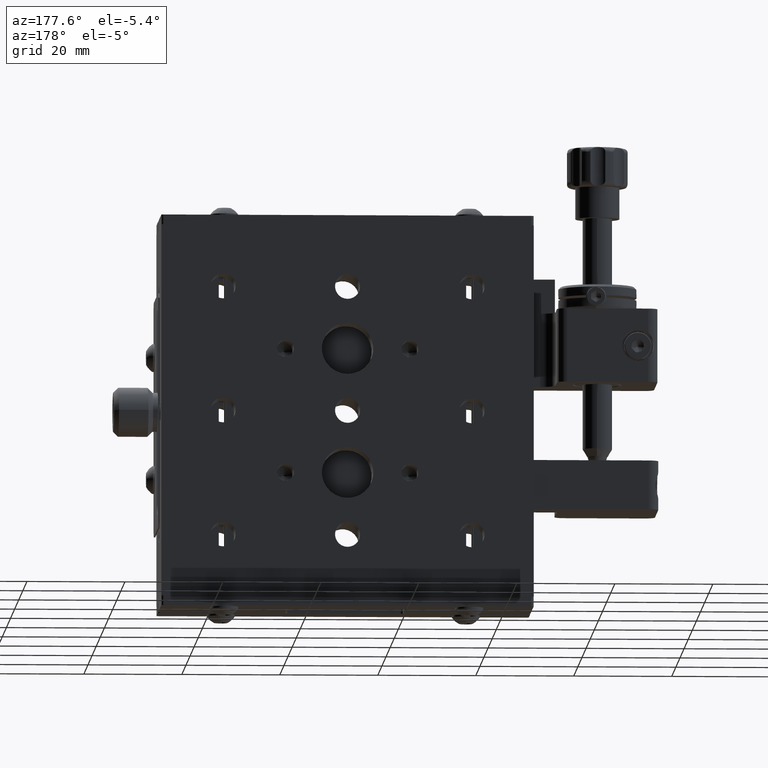
[diagram: clean part render]
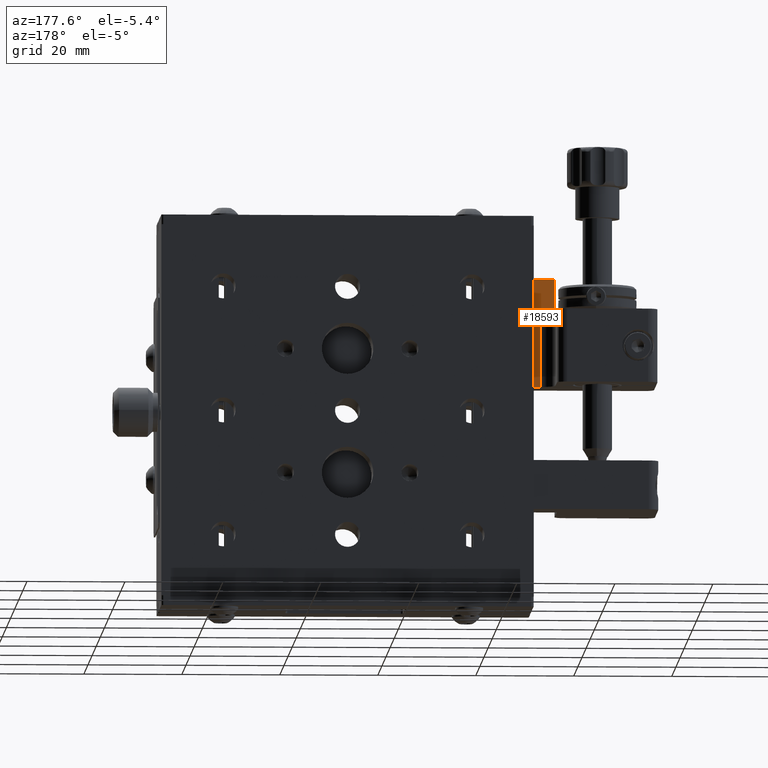
[diagram: same view with one face highlighted and labeled with its STEP entity id]
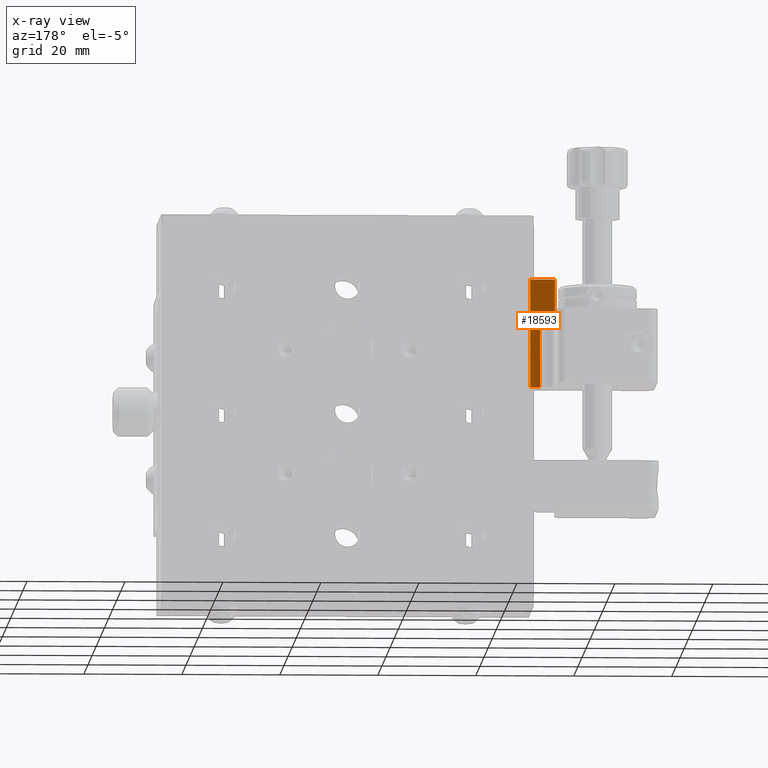
[diagram: x-ray of the same camera — body ghosted, the highlighted face saturated]
A machine part, auxiliary view. The second image highlights one B-rep face of the part: STEP entity #18593.
The next image is the same camera in x-ray: the body ghosted, the highlighted face saturated — about 25% of this face is hidden behind the body in this view.
In plain terms, the highlighted planar face has unit normal (-0, 1, 0).
Its self-contained STEP definition (entity closure, byte-faithful):
#322 = LINE ( 'NONE', #15722, #55772 ) ;
#1371 = DIRECTION ( 'NONE',  ( 1.000000000000000000, 1.222872749216509300E-015, -3.538501282865057600E-016 ) ) ;
#2774 = CARTESIAN_POINT ( 'NONE',  ( -29.25019253063125600, -7.154134368212807800, 117.6000000000000400 ) ) ;
#6920 = DIRECTION ( 'NONE',  ( 1.000000000000000000, 1.222872749216509300E-015, -3.538501282865057600E-016 ) ) ;
#8578 = VECTOR ( 'NONE', #11741, 1000.000000000000000 ) ;
#8798 = VECTOR ( 'NONE', #1371, 1000.000000000000000 ) ;
#9039 = VECTOR ( 'NONE', #10823, 1000.000000000000000 ) ;
#9707 = CARTESIAN_POINT ( 'NONE',  ( -27.25019253063124200, -7.154134368212806000, 139.6000000000002200 ) ) ;
#10598 = CARTESIAN_POINT ( 'NONE',  ( -29.25019253063124900, -7.154134368212804200, 132.6000000000002200 ) ) ;
#10823 = DIRECTION ( 'NONE',  ( -3.538501282865115300E-016, 5.551115123126275700E-017, -1.000000000000000000 ) ) ;
#11741 = DIRECTION ( 'NONE',  ( -3.538501282865115300E-016, 5.551115123126275700E-017, -1.000000000000000000 ) ) ;
#13005 = EDGE_CURVE ( 'NONE', #23465, #21234, #39572, .T. ) ;
#14015 = EDGE_LOOP ( 'NONE', ( #56113, #36491, #51378, #19743, #37570, #18525 ) ) ;
#14135 = VERTEX_POINT ( 'NONE', #35751 ) ;
#15652 = CARTESIAN_POINT ( 'NONE',  ( -32.25019253063124600, -7.154134368212813100, 139.6000000000002200 ) ) ;
#15722 = CARTESIAN_POINT ( 'NONE',  ( -27.25019253063125300, -7.154134368212805100, 117.6000000000000400 ) ) ;
#18525 = ORIENTED_EDGE ( 'NONE', *, *, #41069, .T. ) ;
#18593 = ADVANCED_FACE ( 'NONE', ( #28513 ), #33609, .T. ) ;
#19219 = VERTEX_POINT ( 'NONE', #43359 ) ;
#19743 = ORIENTED_EDGE ( 'NONE', *, *, #54379, .F. ) ;
#20681 = DIRECTION ( 'NONE',  ( -1.222872749216509100E-015, 1.000000000000000000, 5.551115123125283500E-017 ) ) ;
#20925 = LINE ( 'NONE', #45832, #9039 ) ;
#21234 = VERTEX_POINT ( 'NONE', #32613 ) ;
#21852 = LINE ( 'NONE', #15652, #8578 ) ;
#22866 = VECTOR ( 'NONE', #41955, 1000.000000000000000 ) ;
#23465 = VERTEX_POINT ( 'NONE', #57357 ) ;
#27018 = CARTESIAN_POINT ( 'NONE',  ( -27.25019253063124600, -7.154134368212801600, 132.6000000000002200 ) ) ;
#27867 = VECTOR ( 'NONE', #36256, 1000.000000000000000 ) ;
#28490 = AXIS2_PLACEMENT_3D ( 'NONE', #47089, #20681, #42283 ) ;
#28513 = FACE_OUTER_BOUND ( 'NONE', #14015, .T. ) ;
#32613 = CARTESIAN_POINT ( 'NONE',  ( -32.25019253063124600, -7.154134368212808700, 132.6000000000002200 ) ) ;
#33609 = PLANE ( 'NONE',  #28490 ) ;
#34614 = LINE ( 'NONE', #10598, #22866 ) ;
#35751 = CARTESIAN_POINT ( 'NONE',  ( -27.25019253063125300, -7.154134368212805100, 117.6000000000000400 ) ) ;
#36256 = DIRECTION ( 'NONE',  ( -1.000000000000000000, -1.222872749216509100E-015, 4.807811143335895300E-016 ) ) ;
#36491 = ORIENTED_EDGE ( 'NONE', *, *, #37005, .T. ) ;
#37005 = EDGE_CURVE ( 'NONE', #43664, #23465, #34614, .T. ) ;
#37570 = ORIENTED_EDGE ( 'NONE', *, *, #48488, .T. ) ;
#39572 = LINE ( 'NONE', #27018, #27867 ) ;
#41069 = EDGE_CURVE ( 'NONE', #42739, #14135, #20925, .T. ) ;
#41955 = DIRECTION ( 'NONE',  ( 3.538501282865115300E-016, -5.551115123126275700E-017, 1.000000000000000000 ) ) ;
#42283 = DIRECTION ( 'NONE',  ( 1.000000000000000000, 1.222872749216509100E-015, -3.538501282865057600E-016 ) ) ;
#42739 = VERTEX_POINT ( 'NONE', #56196 ) ;
#43359 = CARTESIAN_POINT ( 'NONE',  ( -32.25019253063124600, -7.154134368212813100, 139.6000000000001900 ) ) ;
#43664 = VERTEX_POINT ( 'NONE', #2774 ) ;
#45832 = CARTESIAN_POINT ( 'NONE',  ( -27.25019253063124200, -7.154134368212806000, 139.6000000000002200 ) ) ;
#47089 = CARTESIAN_POINT ( 'NONE',  ( -27.25019253063124200, -7.154134368212806000, 139.6000000000002200 ) ) ;
#48488 = EDGE_CURVE ( 'NONE', #19219, #42739, #55925, .T. ) ;
#51378 = ORIENTED_EDGE ( 'NONE', *, *, #13005, .T. ) ;
#53866 = EDGE_CURVE ( 'NONE', #43664, #14135, #322, .T. ) ;
#54379 = EDGE_CURVE ( 'NONE', #19219, #21234, #21852, .T. ) ;
#55772 = VECTOR ( 'NONE', #6920, 1000.000000000000000 ) ;
#55925 = LINE ( 'NONE', #9707, #8798 ) ;
#56113 = ORIENTED_EDGE ( 'NONE', *, *, #53866, .F. ) ;
#56196 = CARTESIAN_POINT ( 'NONE',  ( -27.25019253063124200, -7.154134368212806000, 139.6000000000002200 ) ) ;
#57357 = CARTESIAN_POINT ( 'NONE',  ( -29.25019253063124900, -7.154134368212804200, 132.6000000000002200 ) ) ;